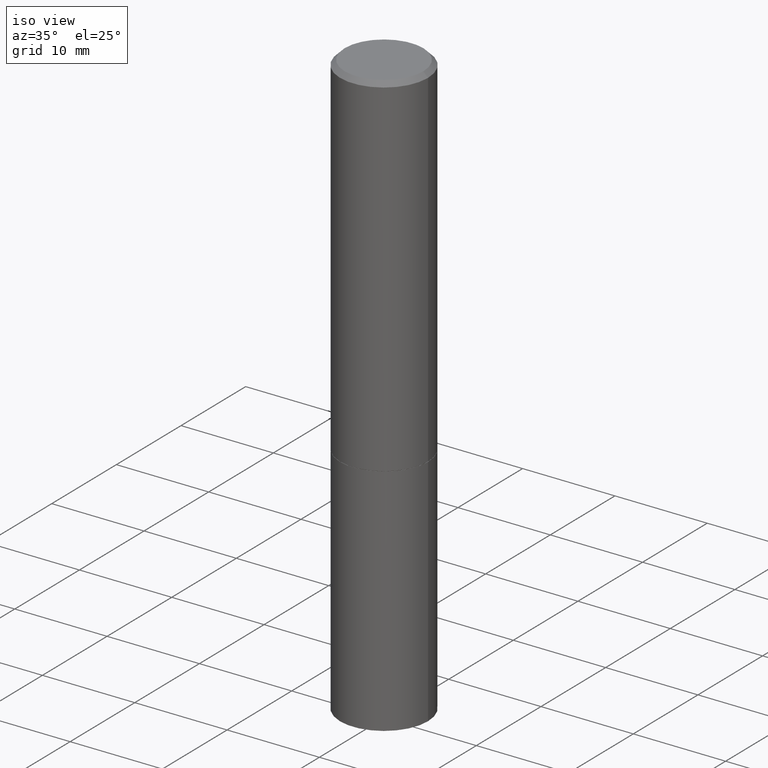
[diagram: clean part render]
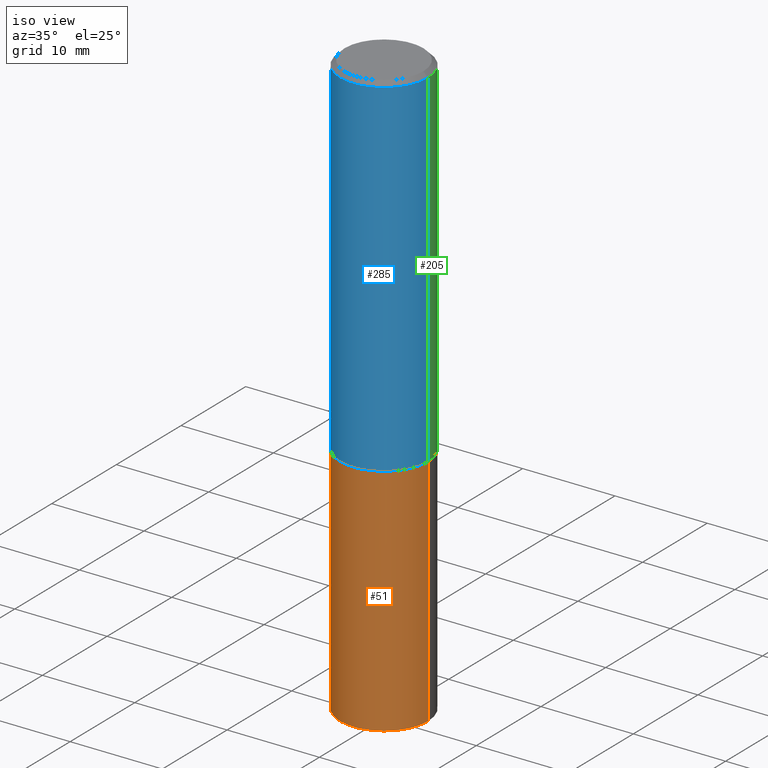
[diagram: same view with three faces highlighted in distinct colors, each labeled with its STEP entity id]
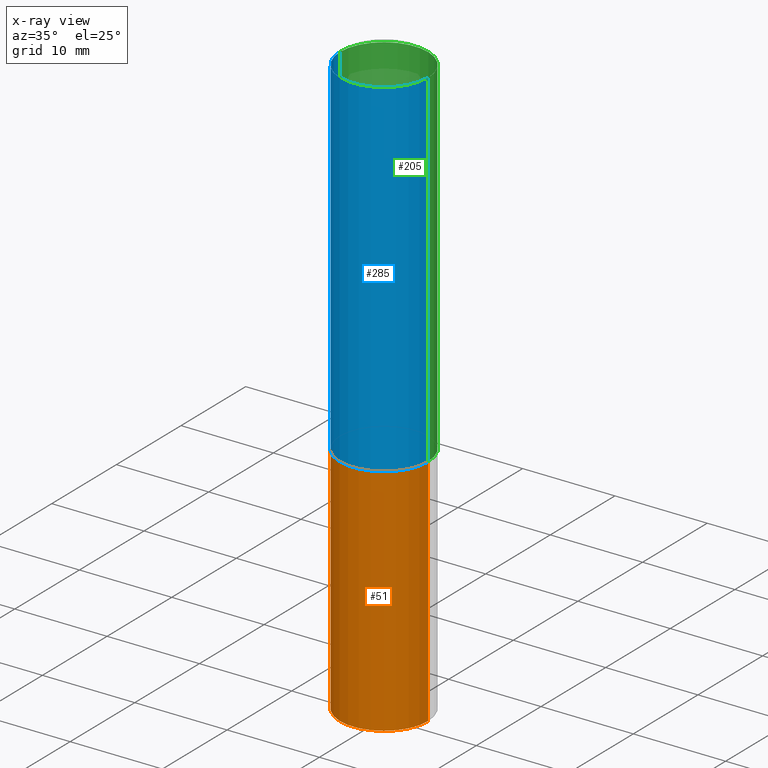
[diagram: x-ray of the same camera — body ghosted, the three highlighted faces saturated]
A machine part, iso view with three faces highlighted in distinct colors.
The next image is the same camera in x-ray (body ghosted, the three faces saturated) — at least one of them is partly hidden behind the body in this view.
Their STEP definitions:

[orange] entity #51 — the highlighted cylindrical surface (partial cylindrical patch) has radius 4.7625 mm, axis along (-0, 0, 1).
#7 = CARTESIAN_POINT ( 'NONE',  ( 0.000000000000000000, 0.000000000000000000, 0.000000000000000000 ) ) ;
#9 = AXIS2_PLACEMENT_3D ( 'NONE', #353, #175, #52 ) ;
#36 = VECTOR ( 'NONE', #188, 39.37007874015748143 ) ;
#41 = CYLINDRICAL_SURFACE ( 'NONE', #374, 0.1875000000000000278 ) ;
#43 = VECTOR ( 'NONE', #339, 39.37007874015748143 ) ;
#51 = ADVANCED_FACE ( 'NONE', ( #198 ), #41, .T. ) ;
#52 = DIRECTION ( 'NONE',  ( 1.000000000000000000, -6.982962677686266711E-15, 0.000000000000000000 ) ) ;
#58 = VERTEX_POINT ( 'NONE', #170 ) ;
#59 = CARTESIAN_POINT ( 'NONE',  ( -0.1875000000000000278, 1.332267629550188046E-15, -9.223003294227947991E-30 ) ) ;
#74 = DIRECTION ( 'NONE',  ( -2.445468806185136597E-29, 3.491481338843145583E-15, 1.000000000000000000 ) ) ;
#75 = ORIENTED_EDGE ( 'NONE', *, *, #183, .T. ) ;
#81 = VERTEX_POINT ( 'NONE', #249 ) ;
#83 = EDGE_CURVE ( 'NONE', #283, #58, #200, .T. ) ;
#115 = DIRECTION ( 'NONE',  ( 1.000000000000000000, -6.982962677686266711E-15, 0.000000000000000000 ) ) ;
#116 = CARTESIAN_POINT ( 'NONE',  ( 0.1874999999999996947, -1.001504672169002396E-14, -2.500000000000000000 ) ) ;
#137 = ORIENTED_EDGE ( 'NONE', *, *, #234, .F. ) ;
#170 = CARTESIAN_POINT ( 'NONE',  ( -0.1875000000000000278, -5.650695048136103317E-15, -1.500000000000000222 ) ) ;
#175 = DIRECTION ( 'NONE',  ( -2.445468806185136597E-29, 3.491481338843145583E-15, 1.000000000000000000 ) ) ;
#181 = CARTESIAN_POINT ( 'NONE',  ( -0.1874999999999996947, -7.419397845041691512E-15, -2.500000000000000000 ) ) ;
#183 = EDGE_CURVE ( 'NONE', #370, #81, #281, .T. ) ;
#188 = DIRECTION ( 'NONE',  ( -2.445468806185136877E-29, 3.491481338843145188E-15, 1.000000000000000000 ) ) ;
#191 = ORIENTED_EDGE ( 'NONE', *, *, #293, .T. ) ;
#195 = DIRECTION ( 'NONE',  ( 1.000000000000000000, -6.982962677686265922E-15, 4.876176775795935793E-29 ) ) ;
#198 = FACE_OUTER_BOUND ( 'NONE', #316, .T. ) ;
#200 = LINE ( 'NONE', #59, #36 ) ;
#234 = EDGE_CURVE ( 'NONE', #58, #81, #259, .T. ) ;
#237 = ORIENTED_EDGE ( 'NONE', *, *, #83, .F. ) ;
#249 = CARTESIAN_POINT ( 'NONE',  ( 0.1875000000000000278, -6.546527510330893974E-15, -1.500000000000000222 ) ) ;
#250 = CARTESIAN_POINT ( 'NONE',  ( 0.1875000000000000278, -1.309305502066175008E-15, 9.142831454617381013E-30 ) ) ;
#259 = CIRCLE ( 'NONE', #9, 0.1875000000000000278 ) ;
#261 = CARTESIAN_POINT ( 'NONE',  ( 6.113672015462842613E-29, -8.728703347107864943E-15, -2.500000000000000000 ) ) ;
#272 = AXIS2_PLACEMENT_3D ( 'NONE', #261, #346, #115 ) ;
#281 = LINE ( 'NONE', #250, #43 ) ;
#283 = VERTEX_POINT ( 'NONE', #181 ) ;
#293 = EDGE_CURVE ( 'NONE', #283, #370, #384, .T. ) ;
#316 = EDGE_LOOP ( 'NONE', ( #237, #191, #75, #137 ) ) ;
#339 = DIRECTION ( 'NONE',  ( -2.445468806185136877E-29, 3.491481338843145188E-15, 1.000000000000000000 ) ) ;
#346 = DIRECTION ( 'NONE',  ( -2.445468806185136597E-29, 3.491481338843145583E-15, 1.000000000000000000 ) ) ;
#353 = CARTESIAN_POINT ( 'NONE',  ( 3.668203209277704895E-29, -5.237222008264718177E-15, -1.500000000000000222 ) ) ;
#370 = VERTEX_POINT ( 'NONE', #116 ) ;
#374 = AXIS2_PLACEMENT_3D ( 'NONE', #7, #74, #195 ) ;
#384 = CIRCLE ( 'NONE', #272, 0.1875000000000000278 ) ;

[blue] entity #285 — the highlighted cylindrical surface (partial cylindrical patch) has radius 4.7625 mm, axis along (-0, 0, 1).
#10 = CARTESIAN_POINT ( 'NONE',  ( -0.1874999999999999722, -1.319512447301180005E-15, -1.499000000000000110 ) ) ;
#12 = CARTESIAN_POINT ( 'NONE',  ( -0.1874999999999999167, 1.332267629550187257E-15, -9.223003294227943787E-30 ) ) ;
#21 = CYLINDRICAL_SURFACE ( 'NONE', #68, 0.1874999999999999167 ) ;
#24 = CARTESIAN_POINT ( 'NONE',  ( 0.1874999999999999167, -1.309305502066174219E-15, 9.142831454617375408E-30 ) ) ;
#56 = CARTESIAN_POINT ( 'NONE',  ( -0.1874999999999998335, 1.239475875289310921E-15, -0.02000000000000001429 ) ) ;
#68 = AXIS2_PLACEMENT_3D ( 'NONE', #82, #378, #213 ) ;
#79 = VERTEX_POINT ( 'NONE', #10 ) ;
#82 = CARTESIAN_POINT ( 'NONE',  ( 0.000000000000000000, 0.000000000000000000, 0.000000000000000000 ) ) ;
#95 = VECTOR ( 'NONE', #144, 39.37007874015748143 ) ;
#103 = EDGE_CURVE ( 'NONE', #79, #226, #133, .T. ) ;
#105 = EDGE_LOOP ( 'NONE', ( #327, #342, #111, #385 ) ) ;
#111 = ORIENTED_EDGE ( 'NONE', *, *, #363, .T. ) ;
#122 = DIRECTION ( 'NONE',  ( -2.445468806185136597E-29, 3.491481338843145583E-15, 1.000000000000000000 ) ) ;
#127 = DIRECTION ( 'NONE',  ( 1.000000000000000000, -6.982962677686266711E-15, 0.000000000000000000 ) ) ;
#133 = CIRCLE ( 'NONE', #167, 0.1875000000000000278 ) ;
#144 = DIRECTION ( 'NONE',  ( -2.445468806185136877E-29, 3.491481338843145188E-15, 1.000000000000000000 ) ) ;
#158 = CARTESIAN_POINT ( 'NONE',  ( 4.890937612370275786E-31, -6.982962677686296539E-17, -0.02000000000000001429 ) ) ;
#166 = EDGE_CURVE ( 'NONE', #306, #280, #266, .T. ) ;
#167 = AXIS2_PLACEMENT_3D ( 'NONE', #295, #122, #243 ) ;
#212 = LINE ( 'NONE', #24, #95 ) ;
#213 = DIRECTION ( 'NONE',  ( 1.000000000000000000, -6.982962677686265922E-15, 4.876176775795935793E-29 ) ) ;
#219 = EDGE_CURVE ( 'NONE', #79, #306, #284, .T. ) ;
#226 = VERTEX_POINT ( 'NONE', #323 ) ;
#242 = DIRECTION ( 'NONE',  ( -2.445468806185136877E-29, 3.491481338843145188E-15, 1.000000000000000000 ) ) ;
#243 = DIRECTION ( 'NONE',  ( 1.000000000000000000, -6.982962677686266711E-15, 0.000000000000000000 ) ) ;
#263 = CARTESIAN_POINT ( 'NONE',  ( 0.1874999999999998335, -1.356173001359024283E-15, -0.02000000000000001429 ) ) ;
#266 = CIRCLE ( 'NONE', #365, 0.1874999999999998335 ) ;
#280 = VERTEX_POINT ( 'NONE', #263 ) ;
#284 = LINE ( 'NONE', #12, #303 ) ;
#285 = ADVANCED_FACE ( 'NONE', ( #352 ), #21, .T. ) ;
#295 = CARTESIAN_POINT ( 'NONE',  ( 3.665757740471519853E-29, -5.233730526925875958E-15, -1.499000000000000110 ) ) ;
#303 = VECTOR ( 'NONE', #242, 39.37007874015748143 ) ;
#306 = VERTEX_POINT ( 'NONE', #56 ) ;
#323 = CARTESIAN_POINT ( 'NONE',  ( 0.1875000000000000278, -6.543036028992050967E-15, -1.499000000000000110 ) ) ;
#327 = ORIENTED_EDGE ( 'NONE', *, *, #219, .F. ) ;
#342 = ORIENTED_EDGE ( 'NONE', *, *, #103, .T. ) ;
#352 = FACE_OUTER_BOUND ( 'NONE', #105, .T. ) ;
#363 = EDGE_CURVE ( 'NONE', #226, #280, #212, .T. ) ;
#364 = DIRECTION ( 'NONE',  ( -2.445468806185136597E-29, 3.491481338843145583E-15, 1.000000000000000000 ) ) ;
#365 = AXIS2_PLACEMENT_3D ( 'NONE', #158, #364, #127 ) ;
#378 = DIRECTION ( 'NONE',  ( -2.445468806185136597E-29, 3.491481338843145583E-15, 1.000000000000000000 ) ) ;
#385 = ORIENTED_EDGE ( 'NONE', *, *, #166, .F. ) ;

[green] entity #205 — the highlighted cylindrical surface (partial cylindrical patch) has radius 4.7625 mm, axis along (-0, 0, 1).
#10 = CARTESIAN_POINT ( 'NONE',  ( -0.1874999999999999722, -1.319512447301180005E-15, -1.499000000000000110 ) ) ;
#11 = ORIENTED_EDGE ( 'NONE', *, *, #19, .F. ) ;
#12 = CARTESIAN_POINT ( 'NONE',  ( -0.1874999999999999167, 1.332267629550187257E-15, -9.223003294227943787E-30 ) ) ;
#19 = EDGE_CURVE ( 'NONE', #280, #306, #227, .T. ) ;
#24 = CARTESIAN_POINT ( 'NONE',  ( 0.1874999999999999167, -1.309305502066174219E-15, 9.142831454617375408E-30 ) ) ;
#50 = DIRECTION ( 'NONE',  ( 1.000000000000000000, -6.982962677686266711E-15, 0.000000000000000000 ) ) ;
#56 = CARTESIAN_POINT ( 'NONE',  ( -0.1874999999999998335, 1.239475875289310921E-15, -0.02000000000000001429 ) ) ;
#72 = DIRECTION ( 'NONE',  ( -2.445468806185136597E-29, 3.491481338843145583E-15, 1.000000000000000000 ) ) ;
#78 = ORIENTED_EDGE ( 'NONE', *, *, #107, .T. ) ;
#79 = VERTEX_POINT ( 'NONE', #10 ) ;
#94 = AXIS2_PLACEMENT_3D ( 'NONE', #351, #387, #297 ) ;
#95 = VECTOR ( 'NONE', #144, 39.37007874015748143 ) ;
#97 = DIRECTION ( 'NONE',  ( -2.445468806185136597E-29, 3.491481338843145583E-15, 1.000000000000000000 ) ) ;
#99 = CYLINDRICAL_SURFACE ( 'NONE', #187, 0.1874999999999999167 ) ;
#107 = EDGE_CURVE ( 'NONE', #226, #79, #302, .T. ) ;
#138 = DIRECTION ( 'NONE',  ( 1.000000000000000000, -6.982962677686265922E-15, 4.876176775795935793E-29 ) ) ;
#144 = DIRECTION ( 'NONE',  ( -2.445468806185136877E-29, 3.491481338843145188E-15, 1.000000000000000000 ) ) ;
#165 = CARTESIAN_POINT ( 'NONE',  ( 0.000000000000000000, 0.000000000000000000, 0.000000000000000000 ) ) ;
#186 = AXIS2_PLACEMENT_3D ( 'NONE', #192, #97, #50 ) ;
#187 = AXIS2_PLACEMENT_3D ( 'NONE', #165, #72, #138 ) ;
#192 = CARTESIAN_POINT ( 'NONE',  ( 3.665757740471519853E-29, -5.233730526925875958E-15, -1.499000000000000110 ) ) ;
#205 = ADVANCED_FACE ( 'NONE', ( #310 ), #99, .T. ) ;
#212 = LINE ( 'NONE', #24, #95 ) ;
#219 = EDGE_CURVE ( 'NONE', #79, #306, #284, .T. ) ;
#226 = VERTEX_POINT ( 'NONE', #323 ) ;
#227 = CIRCLE ( 'NONE', #94, 0.1874999999999998335 ) ;
#232 = ORIENTED_EDGE ( 'NONE', *, *, #219, .T. ) ;
#242 = DIRECTION ( 'NONE',  ( -2.445468806185136877E-29, 3.491481338843145188E-15, 1.000000000000000000 ) ) ;
#262 = ORIENTED_EDGE ( 'NONE', *, *, #363, .F. ) ;
#263 = CARTESIAN_POINT ( 'NONE',  ( 0.1874999999999998335, -1.356173001359024283E-15, -0.02000000000000001429 ) ) ;
#280 = VERTEX_POINT ( 'NONE', #263 ) ;
#284 = LINE ( 'NONE', #12, #303 ) ;
#297 = DIRECTION ( 'NONE',  ( 1.000000000000000000, -6.982962677686266711E-15, 0.000000000000000000 ) ) ;
#302 = CIRCLE ( 'NONE', #186, 0.1875000000000000278 ) ;
#303 = VECTOR ( 'NONE', #242, 39.37007874015748143 ) ;
#306 = VERTEX_POINT ( 'NONE', #56 ) ;
#310 = FACE_OUTER_BOUND ( 'NONE', #377, .T. ) ;
#323 = CARTESIAN_POINT ( 'NONE',  ( 0.1875000000000000278, -6.543036028992050967E-15, -1.499000000000000110 ) ) ;
#351 = CARTESIAN_POINT ( 'NONE',  ( 4.890937612370275786E-31, -6.982962677686296539E-17, -0.02000000000000001429 ) ) ;
#363 = EDGE_CURVE ( 'NONE', #226, #280, #212, .T. ) ;
#377 = EDGE_LOOP ( 'NONE', ( #78, #232, #11, #262 ) ) ;
#387 = DIRECTION ( 'NONE',  ( -2.445468806185136597E-29, 3.491481338843145583E-15, 1.000000000000000000 ) ) ;